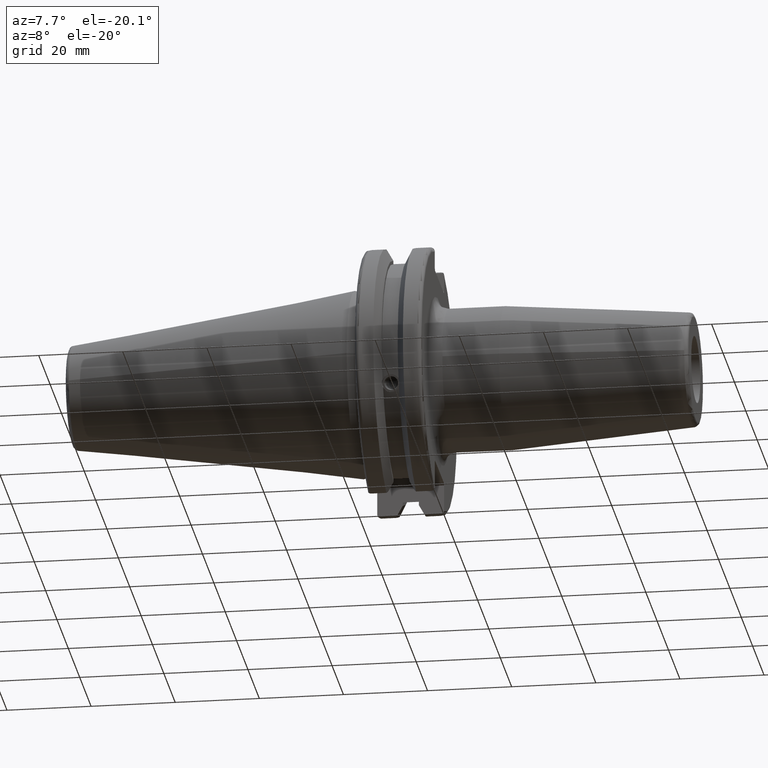
[diagram: clean part render]
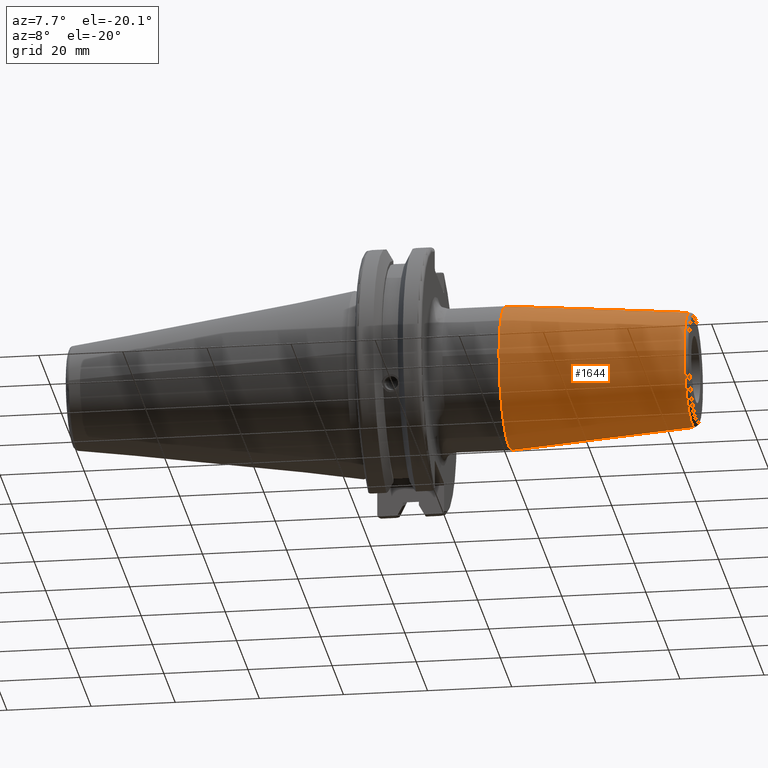
[diagram: same view with one face highlighted and labeled with its STEP entity id]
A machine part, auxiliary view. The second image highlights one B-rep face of the part: STEP entity #1644.
In plain terms, the highlighted conical surface has half-angle 4.5 deg.
Its self-contained STEP definition (entity closure, byte-faithful):
#161=LINE('',#2494,#255);
#255=VECTOR('',#1979,15.25);
#349=CONICAL_SURFACE('',#1757,15.25,0.0785398163397448);
#363=FACE_OUTER_BOUND('',#450,.T.);
#450=EDGE_LOOP('',(#1114,#1115,#1116,#1117,#1118,#1119,#1120));
#554=CIRCLE('',#1753,13.5725268420749);
#555=CIRCLE('',#1754,13.5725268420749);
#556=CIRCLE('',#1755,13.5725268420749);
#558=CIRCLE('',#1758,17.);
#559=CIRCLE('',#1759,17.);
#660=VERTEX_POINT('',#2484);
#661=VERTEX_POINT('',#2486);
#662=VERTEX_POINT('',#2488);
#663=VERTEX_POINT('',#2493);
#664=VERTEX_POINT('',#2495);
#845=EDGE_CURVE('',#660,#661,#554,.T.);
#846=EDGE_CURVE('',#661,#662,#555,.T.);
#847=EDGE_CURVE('',#662,#660,#556,.T.);
#849=EDGE_CURVE('',#661,#663,#161,.T.);
#850=EDGE_CURVE('',#663,#664,#558,.T.);
#851=EDGE_CURVE('',#664,#663,#559,.T.);
#1114=ORIENTED_EDGE('',*,*,#847,.F.);
#1115=ORIENTED_EDGE('',*,*,#846,.F.);
#1116=ORIENTED_EDGE('',*,*,#849,.T.);
#1117=ORIENTED_EDGE('',*,*,#850,.T.);
#1118=ORIENTED_EDGE('',*,*,#851,.T.);
#1119=ORIENTED_EDGE('',*,*,#849,.F.);
#1120=ORIENTED_EDGE('',*,*,#845,.F.);
#1644=ADVANCED_FACE('',(#363),#349,.T.);
#1753=AXIS2_PLACEMENT_3D('',#2487,#1969,#1970);
#1754=AXIS2_PLACEMENT_3D('',#2489,#1971,#1972);
#1755=AXIS2_PLACEMENT_3D('',#2490,#1973,#1974);
#1757=AXIS2_PLACEMENT_3D('',#2492,#1977,#1978);
#1758=AXIS2_PLACEMENT_3D('',#2496,#1980,#1981);
#1759=AXIS2_PLACEMENT_3D('',#2497,#1982,#1983);
#1969=DIRECTION('center_axis',(1.,0.,0.));
#1970=DIRECTION('ref_axis',(0.,-1.,3.06161699786838E-17));
#1971=DIRECTION('center_axis',(1.,0.,0.));
#1972=DIRECTION('ref_axis',(0.,-1.,3.06161699786838E-17));
#1973=DIRECTION('center_axis',(1.,0.,0.));
#1974=DIRECTION('ref_axis',(0.,-1.,3.06161699786838E-17));
#1977=DIRECTION('center_axis',(-1.,0.,0.));
#1978=DIRECTION('ref_axis',(0.,1.,0.));
#1979=DIRECTION('',(-0.996917333733128,-0.0784590957278449,-9.60846804471011E-18));
#1980=DIRECTION('center_axis',(1.,0.,0.));
#1981=DIRECTION('ref_axis',(0.,0.,-1.));
#1982=DIRECTION('center_axis',(1.,0.,0.));
#1983=DIRECTION('ref_axis',(0.,0.,-1.));
#2484=CARTESIAN_POINT('',(79.0784590957279,-1.66215515534886E-15,13.5725268420749));
#2486=CARTESIAN_POINT('',(79.0784590957279,-13.5725268420749,-1.66215515534886E-15));
#2487=CARTESIAN_POINT('Origin',(79.0784590957279,0.,-2.07769394418607E-15));
#2488=CARTESIAN_POINT('',(79.0784590957279,13.5725268420749,-8.3107757767443E-16));
#2489=CARTESIAN_POINT('Origin',(79.0784590957279,0.,-2.07769394418607E-15));
#2490=CARTESIAN_POINT('Origin',(79.0784590957279,0.,-2.07769394418607E-15));
#2492=CARTESIAN_POINT('Origin',(57.7641417116943,0.,0.));
#2493=CARTESIAN_POINT('',(35.5282834233885,-17.,-2.0818995585505E-15));
#2494=CARTESIAN_POINT('',(57.7641417116943,-15.25,-1.86758636869971E-15));
#2495=CARTESIAN_POINT('',(35.5282834233885,17.,0.));
#2496=CARTESIAN_POINT('Origin',(35.5282834233885,0.,0.));
#2497=CARTESIAN_POINT('Origin',(35.5282834233885,0.,0.));